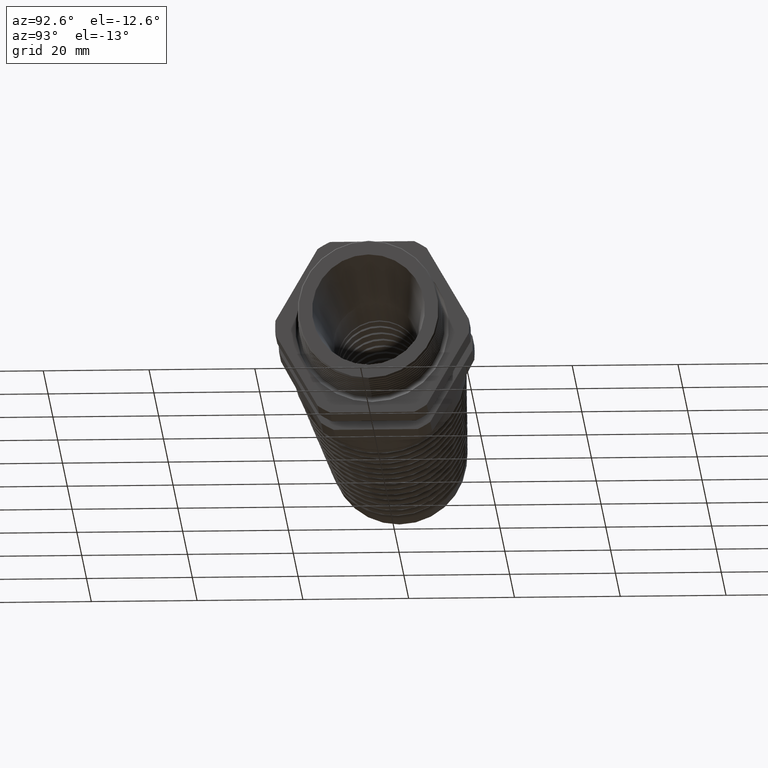
[diagram: clean part render]
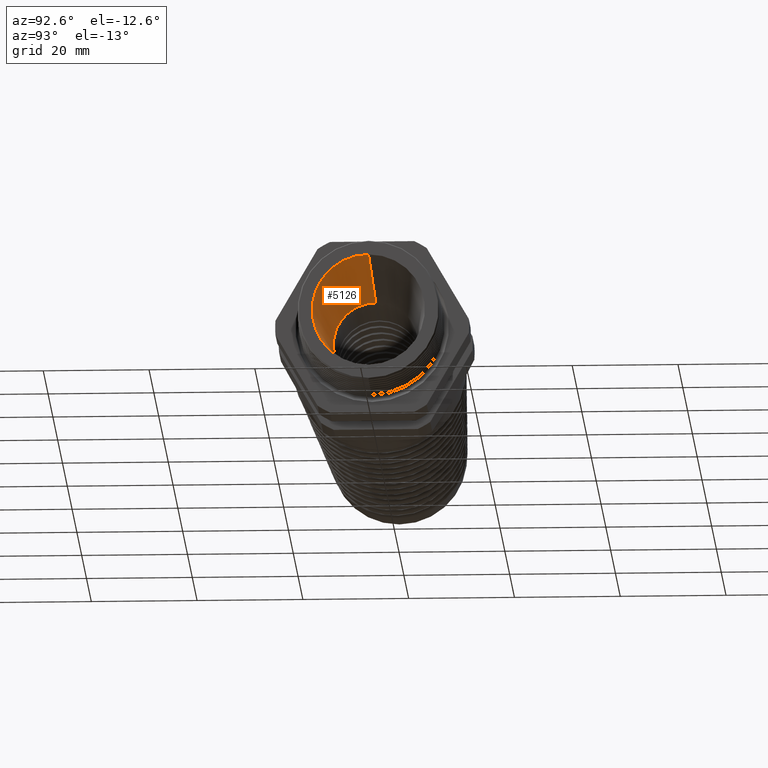
[diagram: same view with one face highlighted and labeled with its STEP entity id]
A machine part, auxiliary view. The second image highlights one B-rep face of the part: STEP entity #5126.
In plain terms, the highlighted conical surface has half-angle 5.085 deg.
Its self-contained STEP definition (entity closure, byte-faithful):
#5053 = VERTEX_POINT ( 'NONE', #11469 ) ;
#5054 = ORIENTED_EDGE ( 'NONE', *, *, #5055, .F. ) ;
#5055 = EDGE_CURVE ( 'NONE', #5072, #5053, #11468, .T. ) ;
#5069 = VERTEX_POINT ( 'NONE', #11500 ) ;
#5071 = EDGE_CURVE ( 'NONE', #5069, #5072, #11499, .T. ) ;
#5072 = VERTEX_POINT ( 'NONE', #11494 ) ;
#5126 = ADVANCED_FACE ( 'NONE', ( #11587 ), #11585, .F. ) ;
#5127 = EDGE_LOOP ( 'NONE', ( #5128, #5129, #5132, #5054 ) ) ;
#5128 = ORIENTED_EDGE ( 'NONE', *, *, #5071, .F. ) ;
#5129 = ORIENTED_EDGE ( 'NONE', *, *, #5130, .T. ) ;
#5130 = EDGE_CURVE ( 'NONE', #5069, #5131, #11586, .T. ) ;
#5131 = VERTEX_POINT ( 'NONE', #11577 ) ;
#5132 = ORIENTED_EDGE ( 'NONE', *, *, #5133, .T. ) ;
#5133 = EDGE_CURVE ( 'NONE', #5131, #5053, #11576, .T. ) ;
#11465 = DIRECTION ( 'NONE',  ( 0.9960648867844634800, 0.0000000000000000000, -0.08862697848315755100 ) ) ;
#11466 = VECTOR ( 'NONE', #11465, 39.37007874015748900 ) ;
#11467 = CARTESIAN_POINT ( 'NONE',  ( -0.9000787401574806800, 0.0000000000000000000, -0.3150000000000000000 ) ) ;
#11468 = LINE ( 'NONE', #11467, #11466 ) ;
#11469 = CARTESIAN_POINT ( 'NONE',  ( 0.2800000000000000300, 0.0000000000000000000, -0.4200000000000000400 ) ) ;
#11494 = CARTESIAN_POINT ( 'NONE',  ( -0.9000787401574806800, 0.0000000000000000000, -0.3150000000000000000 ) ) ;
#11495 = DIRECTION ( 'NONE',  ( 0.0000000000000000000, 0.0000000000000000000, -1.000000000000000000 ) ) ;
#11496 = DIRECTION ( 'NONE',  ( 1.000000000000000000, 0.0000000000000000000, 0.0000000000000000000 ) ) ;
#11497 = CARTESIAN_POINT ( 'NONE',  ( -0.9000787401574806800, 0.0000000000000000000, 0.0000000000000000000 ) ) ;
#11498 = AXIS2_PLACEMENT_3D ( 'NONE', #11497, #11496, #11495 ) ;
#11499 = CIRCLE ( 'NONE', #11498, 0.3150000000000000000 ) ;
#11500 = CARTESIAN_POINT ( 'NONE',  ( -0.9000787401574806800, 4.500576986866523500E-017, 0.3150000000000000000 ) ) ;
#11572 = DIRECTION ( 'NONE',  ( 0.0000000000000000000, 0.0000000000000000000, -1.000000000000000000 ) ) ;
#11573 = DIRECTION ( 'NONE',  ( 1.000000000000000000, 0.0000000000000000000, 0.0000000000000000000 ) ) ;
#11574 = CARTESIAN_POINT ( 'NONE',  ( 0.2800000000000000300, 0.0000000000000000000, 0.0000000000000000000 ) ) ;
#11575 = AXIS2_PLACEMENT_3D ( 'NONE', #11574, #11573, #11572 ) ;
#11576 = CIRCLE ( 'NONE', #11575, 0.4200000000000000400 ) ;
#11577 = CARTESIAN_POINT ( 'NONE',  ( 0.2800000000000000300, 5.143516556418884400E-017, 0.4200000000000000400 ) ) ;
#11578 = DIRECTION ( 'NONE',  ( 0.9960648867844634800, 1.085367455175002500E-017, 0.08862697848315755100 ) ) ;
#11579 = VECTOR ( 'NONE', #11578, 39.37007874015748900 ) ;
#11580 = CARTESIAN_POINT ( 'NONE',  ( -0.9000787401574806800, 3.857637417314162700E-017, 0.3150000000000000000 ) ) ;
#11581 = DIRECTION ( 'NONE',  ( 0.0000000000000000000, 0.0000000000000000000, -1.000000000000000000 ) ) ;
#11582 = DIRECTION ( 'NONE',  ( 1.000000000000000000, 0.0000000000000000000, 0.0000000000000000000 ) ) ;
#11583 = CARTESIAN_POINT ( 'NONE',  ( -0.9000787401574806800, 0.0000000000000000000, 0.0000000000000000000 ) ) ;
#11584 = AXIS2_PLACEMENT_3D ( 'NONE', #11583, #11582, #11581 ) ;
#11585 = CONICAL_SURFACE ( 'NONE', #11584, 0.3150000000000000000, 0.08874341417693415400 ) ;
#11586 = LINE ( 'NONE', #11580, #11579 ) ;
#11587 = FACE_OUTER_BOUND ( 'NONE', #5127, .T. ) ;